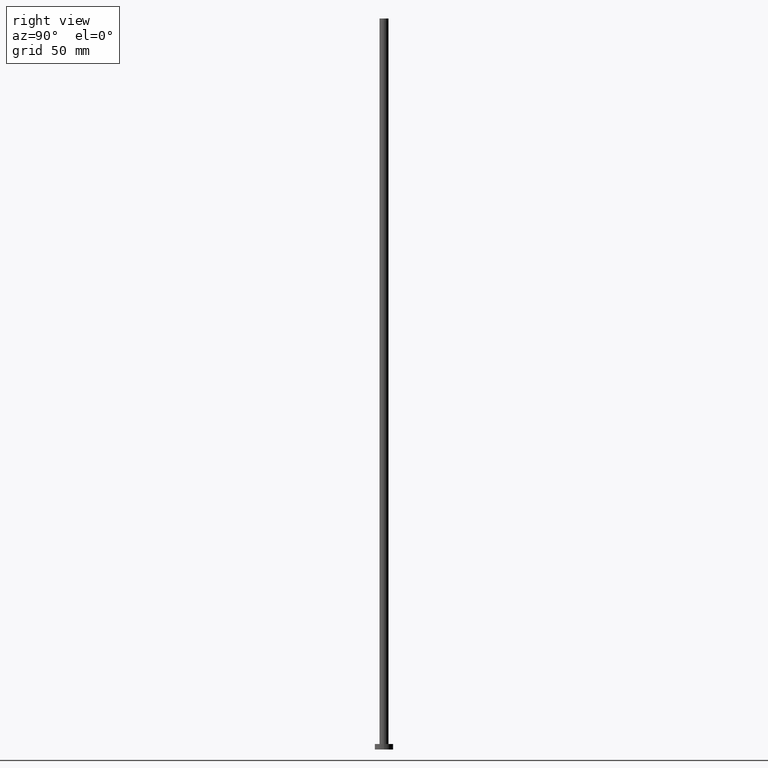
[diagram: clean part render]
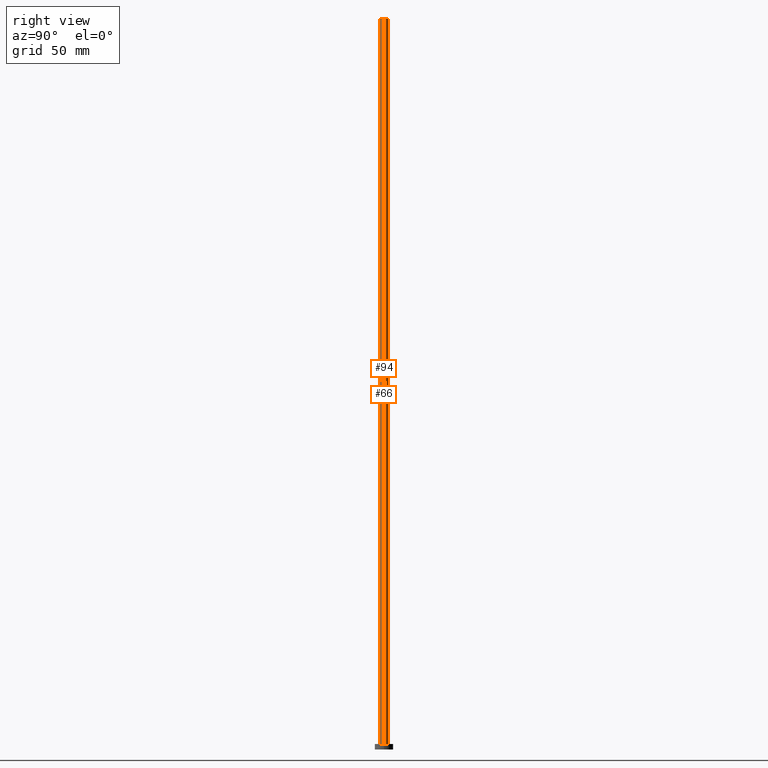
[diagram: same view with one multi-face feature highlighted, each face labeled with its STEP entity id]
A machine part, right view. The highlighted faces form ONE feature: a constant-radius fillet chain: 2 tangent blend faces with common blend radius 2.5 mm. The faces share edges in the B-rep.
Their STEP definitions:
[1] entity #66 (Cylinder):
#6 = CIRCLE ( 'NONE', #139, 2.500000000000000000 ) ;
#8 = DIRECTION ( 'NONE',  ( 1.000000000000000000, 0.000000000000000000, 0.000000000000000000 ) ) ;
#12 = CIRCLE ( 'NONE', #32, 2.500000000000000000 ) ;
#13 = CARTESIAN_POINT ( 'NONE',  ( 2.500000000000000000, 3.061616997868383141E-16, 400.0000000000000000 ) ) ;
#28 = AXIS2_PLACEMENT_3D ( 'NONE', #131, #87, #105 ) ;
#32 = AXIS2_PLACEMENT_3D ( 'NONE', #98, #138, #8 ) ;
#42 = EDGE_CURVE ( 'NONE', #150, #116, #245, .T. ) ;
#45 = CARTESIAN_POINT ( 'NONE',  ( -2.500000000000000000, 0.000000000000000000, 400.0000000000000000 ) ) ;
#56 = FACE_OUTER_BOUND ( 'NONE', #249, .T. ) ;
#61 = VERTEX_POINT ( 'NONE', #231 ) ;
#66 = ADVANCED_FACE ( 'NONE', ( #56 ), #180, .T. ) ;
#83 = LINE ( 'NONE', #45, #147 ) ;
#87 = DIRECTION ( 'NONE',  ( -0.000000000000000000, -0.000000000000000000, -1.000000000000000000 ) ) ;
#98 = CARTESIAN_POINT ( 'NONE',  ( 0.000000000000000000, 0.000000000000000000, 3.000000000000000000 ) ) ;
#105 = DIRECTION ( 'NONE',  ( -1.000000000000000000, 0.000000000000000000, 0.000000000000000000 ) ) ;
#116 = VERTEX_POINT ( 'NONE', #155 ) ;
#120 = EDGE_CURVE ( 'NONE', #150, #191, #6, .T. ) ;
#130 = VECTOR ( 'NONE', #186, 1000.000000000000000 ) ;
#131 = CARTESIAN_POINT ( 'NONE',  ( 0.000000000000000000, 0.000000000000000000, 400.0000000000000000 ) ) ;
#138 = DIRECTION ( 'NONE',  ( 0.000000000000000000, 0.000000000000000000, 1.000000000000000000 ) ) ;
#139 = AXIS2_PLACEMENT_3D ( 'NONE', #223, #162, #177 ) ;
#147 = VECTOR ( 'NONE', #227, 1000.000000000000000 ) ;
#150 = VERTEX_POINT ( 'NONE', #237 ) ;
#152 = ORIENTED_EDGE ( 'NONE', *, *, #120, .F. ) ;
#155 = CARTESIAN_POINT ( 'NONE',  ( 2.500000000000000000, 3.061616997868383141E-16, 3.000000000000000000 ) ) ;
#162 = DIRECTION ( 'NONE',  ( 0.000000000000000000, 0.000000000000000000, 1.000000000000000000 ) ) ;
#171 = EDGE_CURVE ( 'NONE', #116, #61, #12, .T. ) ;
#177 = DIRECTION ( 'NONE',  ( 1.000000000000000000, 0.000000000000000000, 0.000000000000000000 ) ) ;
#180 = CYLINDRICAL_SURFACE ( 'NONE', #28, 2.500000000000000000 ) ;
#186 = DIRECTION ( 'NONE',  ( -0.000000000000000000, -0.000000000000000000, -1.000000000000000000 ) ) ;
#191 = VERTEX_POINT ( 'NONE', #228 ) ;
#193 = ORIENTED_EDGE ( 'NONE', *, *, #171, .T. ) ;
#204 = EDGE_CURVE ( 'NONE', #191, #61, #83, .T. ) ;
#214 = ORIENTED_EDGE ( 'NONE', *, *, #42, .T. ) ;
#223 = CARTESIAN_POINT ( 'NONE',  ( 0.000000000000000000, 0.000000000000000000, 400.0000000000000000 ) ) ;
#227 = DIRECTION ( 'NONE',  ( -0.000000000000000000, -0.000000000000000000, -1.000000000000000000 ) ) ;
#228 = CARTESIAN_POINT ( 'NONE',  ( -2.500000000000000000, 0.000000000000000000, 400.0000000000000000 ) ) ;
#231 = CARTESIAN_POINT ( 'NONE',  ( -2.500000000000000000, 0.000000000000000000, 3.000000000000000000 ) ) ;
#233 = ORIENTED_EDGE ( 'NONE', *, *, #204, .F. ) ;
#237 = CARTESIAN_POINT ( 'NONE',  ( 2.500000000000000000, 3.061616997868383141E-16, 400.0000000000000000 ) ) ;
#245 = LINE ( 'NONE', #13, #130 ) ;
#249 = EDGE_LOOP ( 'NONE', ( #152, #214, #193, #233 ) ) ;
[2] entity #94 (Cylinder):
#13 = CARTESIAN_POINT ( 'NONE',  ( 2.500000000000000000, 3.061616997868383141E-16, 400.0000000000000000 ) ) ;
#20 = EDGE_CURVE ( 'NONE', #61, #116, #118, .T. ) ;
#21 = ORIENTED_EDGE ( 'NONE', *, *, #204, .T. ) ;
#36 = DIRECTION ( 'NONE',  ( -1.000000000000000000, 0.000000000000000000, 0.000000000000000000 ) ) ;
#39 = ORIENTED_EDGE ( 'NONE', *, *, #42, .F. ) ;
#42 = EDGE_CURVE ( 'NONE', #150, #116, #245, .T. ) ;
#45 = CARTESIAN_POINT ( 'NONE',  ( -2.500000000000000000, 0.000000000000000000, 400.0000000000000000 ) ) ;
#53 = DIRECTION ( 'NONE',  ( 0.000000000000000000, 0.000000000000000000, 1.000000000000000000 ) ) ;
#59 = FACE_OUTER_BOUND ( 'NONE', #178, .T. ) ;
#61 = VERTEX_POINT ( 'NONE', #231 ) ;
#64 = DIRECTION ( 'NONE',  ( 1.000000000000000000, 0.000000000000000000, 0.000000000000000000 ) ) ;
#67 = AXIS2_PLACEMENT_3D ( 'NONE', #143, #53, #207 ) ;
#83 = LINE ( 'NONE', #45, #147 ) ;
#94 = ADVANCED_FACE ( 'NONE', ( #59 ), #135, .T. ) ;
#95 = AXIS2_PLACEMENT_3D ( 'NONE', #149, #235, #64 ) ;
#108 = EDGE_CURVE ( 'NONE', #191, #150, #161, .T. ) ;
#116 = VERTEX_POINT ( 'NONE', #155 ) ;
#118 = CIRCLE ( 'NONE', #67, 2.500000000000000000 ) ;
#130 = VECTOR ( 'NONE', #186, 1000.000000000000000 ) ;
#135 = CYLINDRICAL_SURFACE ( 'NONE', #212, 2.500000000000000000 ) ;
#143 = CARTESIAN_POINT ( 'NONE',  ( 0.000000000000000000, 0.000000000000000000, 3.000000000000000000 ) ) ;
#147 = VECTOR ( 'NONE', #227, 1000.000000000000000 ) ;
#149 = CARTESIAN_POINT ( 'NONE',  ( 0.000000000000000000, 0.000000000000000000, 400.0000000000000000 ) ) ;
#150 = VERTEX_POINT ( 'NONE', #237 ) ;
#155 = CARTESIAN_POINT ( 'NONE',  ( 2.500000000000000000, 3.061616997868383141E-16, 3.000000000000000000 ) ) ;
#161 = CIRCLE ( 'NONE', #95, 2.500000000000000000 ) ;
#167 = DIRECTION ( 'NONE',  ( -0.000000000000000000, -0.000000000000000000, -1.000000000000000000 ) ) ;
#169 = ORIENTED_EDGE ( 'NONE', *, *, #108, .F. ) ;
#178 = EDGE_LOOP ( 'NONE', ( #39, #169, #21, #230 ) ) ;
#186 = DIRECTION ( 'NONE',  ( -0.000000000000000000, -0.000000000000000000, -1.000000000000000000 ) ) ;
#191 = VERTEX_POINT ( 'NONE', #228 ) ;
#204 = EDGE_CURVE ( 'NONE', #191, #61, #83, .T. ) ;
#207 = DIRECTION ( 'NONE',  ( 1.000000000000000000, 0.000000000000000000, 0.000000000000000000 ) ) ;
#212 = AXIS2_PLACEMENT_3D ( 'NONE', #217, #167, #36 ) ;
#217 = CARTESIAN_POINT ( 'NONE',  ( 0.000000000000000000, 0.000000000000000000, 400.0000000000000000 ) ) ;
#227 = DIRECTION ( 'NONE',  ( -0.000000000000000000, -0.000000000000000000, -1.000000000000000000 ) ) ;
#228 = CARTESIAN_POINT ( 'NONE',  ( -2.500000000000000000, 0.000000000000000000, 400.0000000000000000 ) ) ;
#230 = ORIENTED_EDGE ( 'NONE', *, *, #20, .T. ) ;
#231 = CARTESIAN_POINT ( 'NONE',  ( -2.500000000000000000, 0.000000000000000000, 3.000000000000000000 ) ) ;
#235 = DIRECTION ( 'NONE',  ( 0.000000000000000000, 0.000000000000000000, 1.000000000000000000 ) ) ;
#237 = CARTESIAN_POINT ( 'NONE',  ( 2.500000000000000000, 3.061616997868383141E-16, 400.0000000000000000 ) ) ;
#245 = LINE ( 'NONE', #13, #130 ) ;